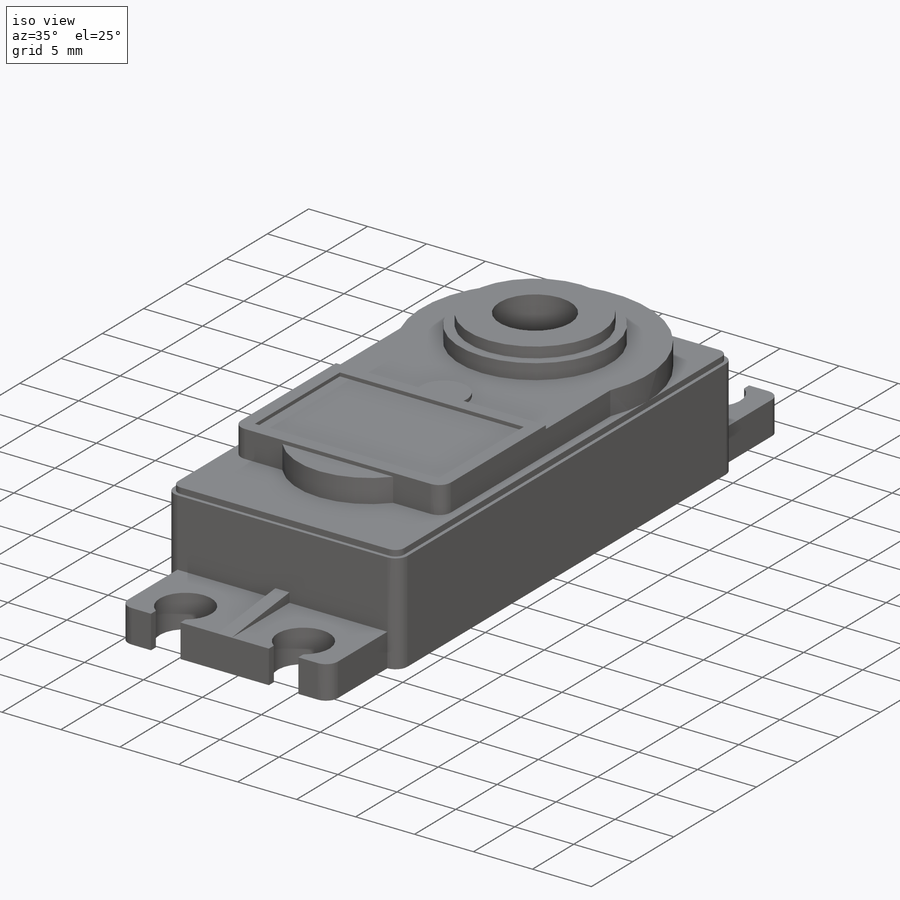
[diagram: iso view]
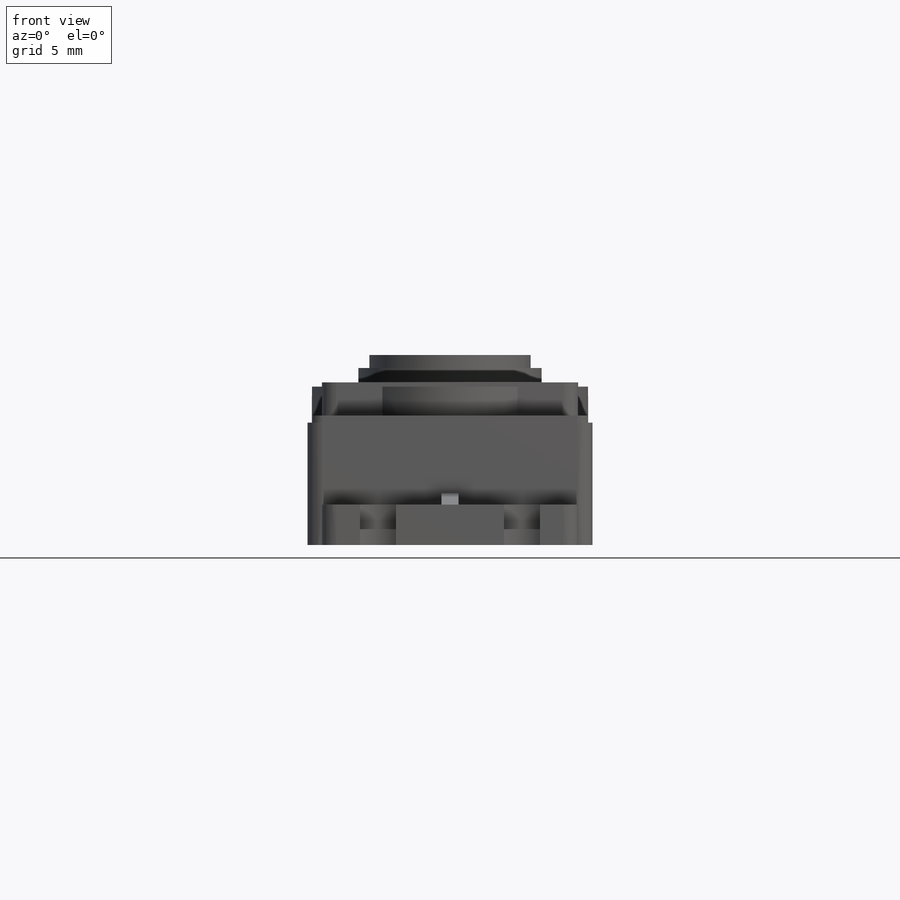
[diagram: front view]
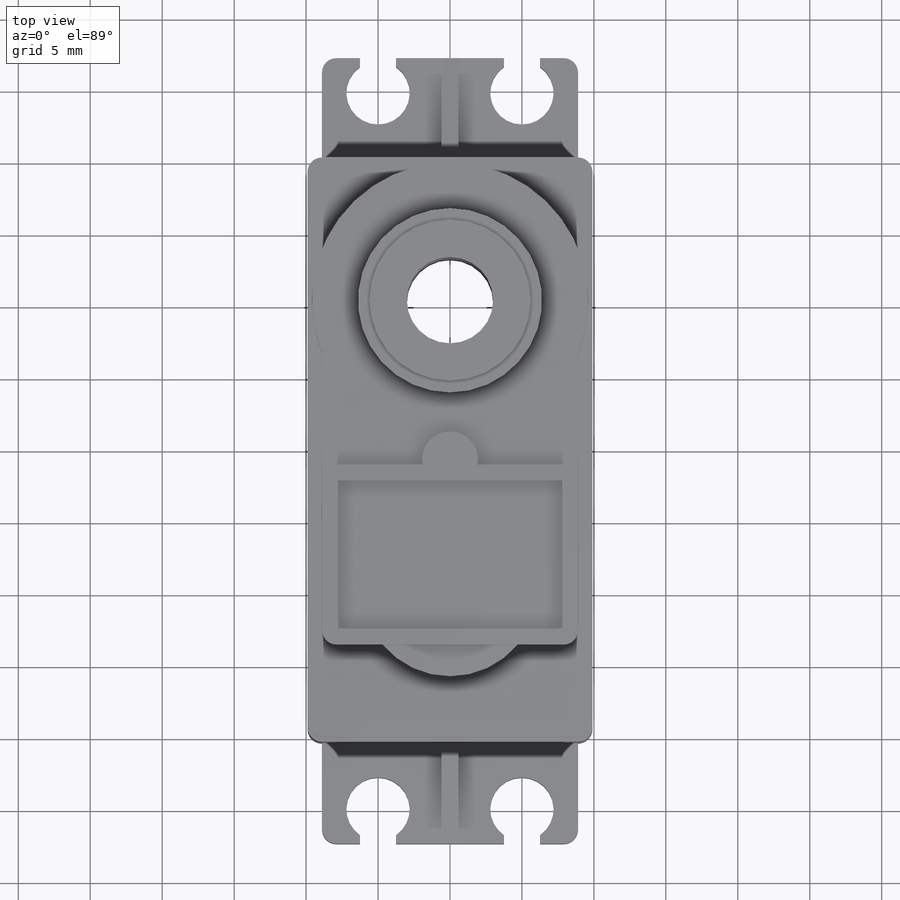
[diagram: top view]
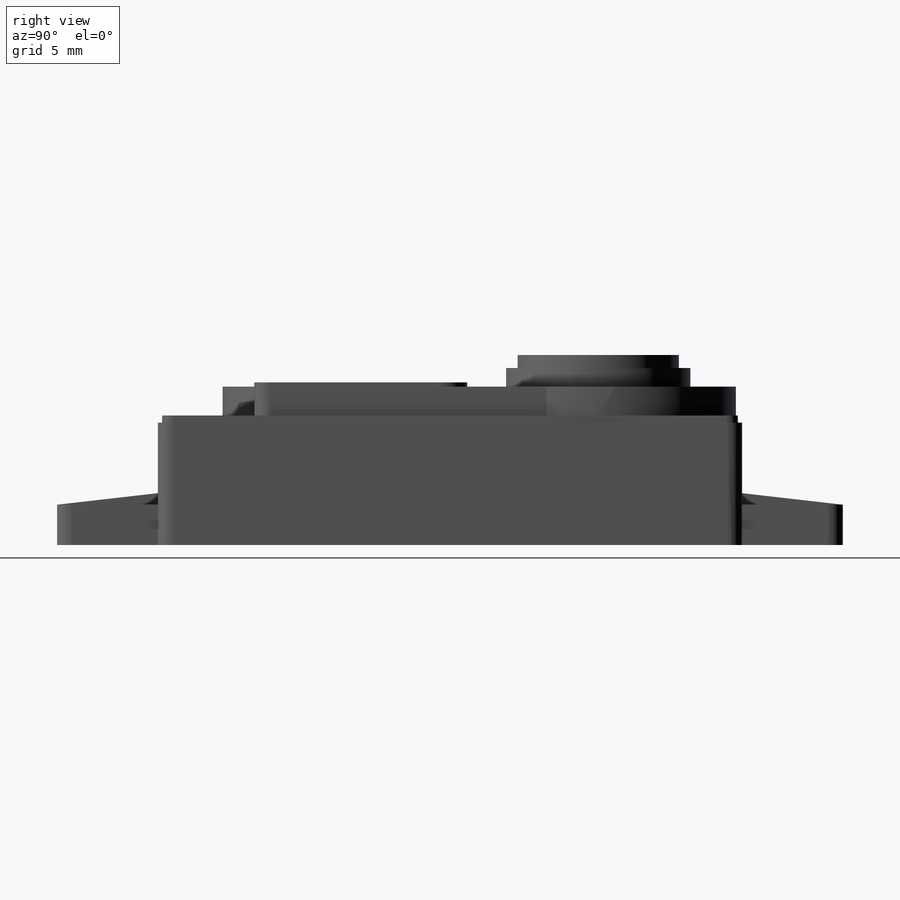
[diagram: right view]
SOLIDWORKS PART (.sldprt)
format: sldprt  version: not decoded by parser v0  size: 489,472 bytes
history: native  units: mm
features: sketch x13, extrude x9, cut_extrude x4, mirror x2, fillet x2, material x1 (+16 scaffold rows collapsed; 3 parser-record rows omitted)
feature tree (50):
  scaffold x16  (default folders/planes/origin — collapsed)
  material  "Polyethylene Cross-Linked"
  parser-record x3  (decoder bookkeeping rows leaked as tree rows — omitted from the tree; the rows remain in map.json)
  sketch  "Sketch6"  dims[c1.D1=40.6mm c1.D2=19.8mm c2.D1=0.0mm]
  extrude  "Boss-Extrude3"  Depth=9mm
  sketch  "Sketch11"  dims[D2=6.0mm D1=10.0mm]
  cut_extrude  "Cut-Extrude3"  [1 undecoded]
  sketch  "Sketch12"  dims[c1.D1=16.0mm c1.D2=2.8mm c2.D1=6.4mm c2.D3=17.8mm c2.D4=6.4mm c3.D1=6.0mm]
  extrude  "Boss-Extrude4"  Depth=7mm
  sketch  "Sketch13"  dims[c1.D1=4.4mm c1.D2=4.0mm c1.D3=5.0mm c1.D4=2.5mm c2.D2=0.6mm]
  cut_extrude  "Cut-Extrude4"  [1 undecoded]
  mirror  "Mirror6"
  sketch  "Sketch20"  dims[D1=1.4mm D2=5.0mm]
  cut_extrude  "Cut-Extrude7"  Depth=0.5mm
  sketch  "Sketch21"  dims[D1=0.8mm]
  extrude  "Boss-Extrude8"  Depth=1.2mm
  mirror  "Mirror7"
  sketch  "Sketch28"  dims[D1=0.0mm D2=0.3mm]
  sketch  "Sketch16"  dims[c1.D1=19.16mm c1.D3=6.8mm c2.D1=19.2mm c2.D2=17.8mm c2.D3=~2.839525mm c2.D4=26.4mm c2.D5=~3.411164mm c3.D2=17.8mm c3.D3=20.3mm c3.D4=17.8mm]
  extrude  "Boss-Extrude6"  Depth=2mm
  sketch  "Sketch23"  dims[D1=2.2mm D2=9.4mm D3=0.0mm]
  extrude  "Boss-Extrude9"  [1 undecoded]
  sketch  "Sketch24"  dims[D1=12.8mm]
  extrude  "Boss-Extrude10"  Depth=1.3mm
  sketch  "Sketch25"  dims[D1=11.2mm]
  extrude  "Boss-Extrude11"  Depth=0.9mm
  sketch  "Sketch26"  dims[D1=12.5mm D2=1.1mm D3=1.1mm]
  extrude  "Boss-Extrude12"  Depth=0.3mm
  sketch  "Sketch27"  dims[c1.D1=3.9mm c1.D2=1.95mm c2.D1=3.4mm]
  extrude  "Boss-Extrude13"  [1 undecoded]
  cut_extrude  "Cut-Extrude8"  Depth=0.5mm
  fillet  "Fillet1"  Radius=1mm
  fillet  "Fillet2"  Radius=0.75mm
decode coverage: 24 of 30 modeling features carry decoded parameters
note: ~ marks probable driven/reference dimensions
note: 4 parameter values undecoded
summary: no parameter record found for 4 features
note: suppression state not decoded; provenance and decode notes live in map.json
